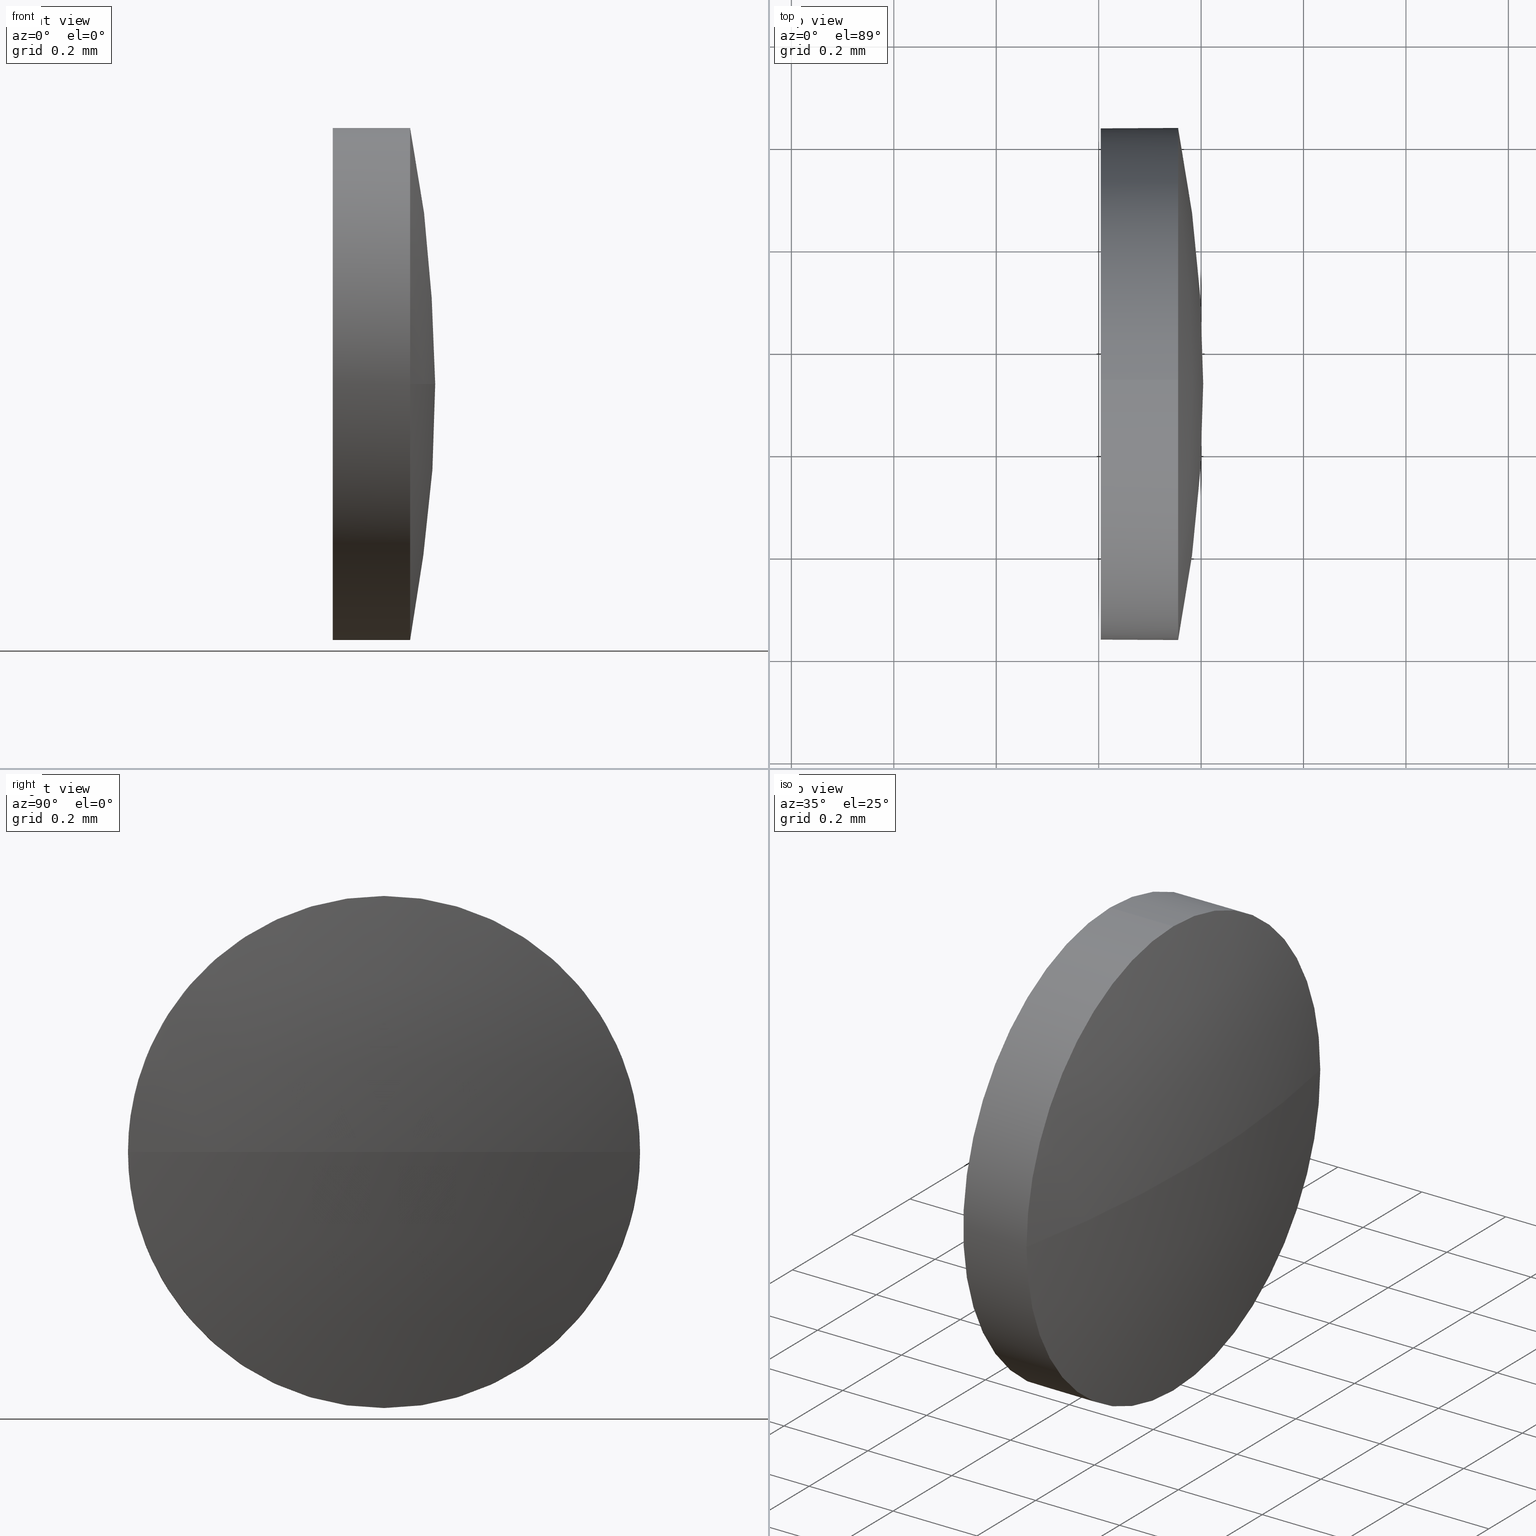
[diagram: canonical four-view strip — front | top / right | iso, engineering-drawing reading convention]
A machine part, canonical four-view strip (front | top / right | iso — engineering-drawing reading convention). The complete STEP part file that produces these views, byte-faithful:
ISO-10303-21;
HEADER;
FILE_DESCRIPTION (( 'STEP AP214' ),
    '1' );
FILE_NAME ('100106.STEP',
    '2019-05-13T08:53:25',
    ( '' ),
    ( '' ),
    'SwSTEP 2.0',
    'SolidWorks 2016',
    '' );
FILE_SCHEMA (( 'AUTOMOTIVE_DESIGN' ));
ENDSEC;

DATA;
#1 = PRODUCT_DEFINITION_SHAPE ( 'NONE', 'NONE',  #185 ) ;
#2 = VERTEX_POINT ( 'NONE', #139 ) ;
#3 = EDGE_CURVE ( 'NONE', #87, #138, #28, .T. ) ;
#4 = CARTESIAN_POINT ( 'NONE',  ( 48.82861791711177800, 12.93295623006154700, 0.0000000000000000000 ) ) ;
#5 = VERTEX_POINT ( 'NONE', #165 ) ;
#6 = DIRECTION ( 'NONE',  ( 0.0000000000000000000, -1.000000000000000000, 0.0000000000000000000 ) ) ;
#7 = CARTESIAN_POINT ( 'NONE',  ( 51.20413832527503900, 12.93295623006154200, -0.5000000000000004400 ) ) ;
#8 = PRODUCT_DEFINITION_FORMATION_WITH_SPECIFIED_SOURCE ( '�κ�', '', #55, .NOT_KNOWN. ) ;
#9 = CARTESIAN_POINT ( 'NONE',  ( 51.10998327809760200, 12.93295623006154200, 0.0000000000000000000 ) ) ;
#10 = DIRECTION ( 'NONE',  ( 0.0000000000000000000, 0.0000000000000000000, 1.000000000000000000 ) ) ;
#11 = ADVANCED_FACE ( 'NONE', ( #104 ), #96, .F. ) ;
#12 = EDGE_CURVE ( 'NONE', #115, #138, #100, .T. ) ;
#13 = DIRECTION ( 'NONE',  ( -1.000000000000000000, -0.0000000000000000000, -0.0000000000000000000 ) ) ;
#14 = FACE_OUTER_BOUND ( 'NONE', #60, .T. ) ;
#15 = ORIENTED_EDGE ( 'NONE', *, *, #149, .T. ) ;
#16 = DIRECTION ( 'NONE',  ( 0.0000000000000000000, 0.0000000000000000000, 1.000000000000000000 ) ) ;
#17 = PRESENTATION_LAYER_ASSIGNMENT (  '', '', ( #173 ) ) ;
#18 = APPLICATION_CONTEXT ( 'automotive_design' ) ;
#19 = UNCERTAINTY_MEASURE_WITH_UNIT (LENGTH_MEASURE( 1.000000000000000100E-005 ), #73, 'distance_accuracy_value', 'NONE');
#20 = DIRECTION ( 'NONE',  ( 0.0000000000000000000, -1.000000000000000000, 0.0000000000000000000 ) ) ;
#21 = VERTEX_POINT ( 'NONE', #7 ) ;
#22 = CARTESIAN_POINT ( 'NONE',  ( 51.10998327809760200, 12.93295623006154200, 0.0000000000000000000 ) ) ;
#23 = DIRECTION ( 'NONE',  ( 0.0000000000000000000, 0.0000000000000000000, 1.000000000000000000 ) ) ;
#24 =( LENGTH_UNIT ( ) NAMED_UNIT ( * ) SI_UNIT ( .MILLI., .METRE. ) );
#25 = SURFACE_SIDE_STYLE ('',( #170 ) ) ;
#26 = EDGE_CURVE ( 'NONE', #115, #5, #65, .T. ) ;
#27 = DIRECTION ( 'NONE',  ( -1.000000000000000000, -0.0000000000000000000, -0.0000000000000000000 ) ) ;
#28 = CIRCLE ( 'NONE', #52, 0.5000000000000004400 ) ;
#29 = AXIS2_PLACEMENT_3D ( 'NONE', #167, #129, #144 ) ;
#30 = ADVANCED_FACE ( 'NONE', ( #171 ), #151, .T. ) ;
#31 = DIRECTION ( 'NONE',  ( -1.000000000000000000, -0.0000000000000000000, -0.0000000000000000000 ) ) ;
#32 = CARTESIAN_POINT ( 'NONE',  ( 48.82861791711177800, 12.93295623006154700, 0.0000000000000000000 ) ) ;
#33 = ORIENTED_EDGE ( 'NONE', *, *, #174, .F. ) ;
#34 = ORIENTED_EDGE ( 'NONE', *, *, #59, .T. ) ;
#35 =( NAMED_UNIT ( * ) SI_UNIT ( $, .STERADIAN. ) SOLID_ANGLE_UNIT ( ) );
#36 = ADVANCED_BREP_SHAPE_REPRESENTATION ( '100106', ( #116, #29 ), #140 ) ;
#37 = APPLICATION_PROTOCOL_DEFINITION ( 'draft international standard', 'automotive_design', 1998, #18 ) ;
#38 = FACE_OUTER_BOUND ( 'NONE', #176, .T. ) ;
#39 = EDGE_CURVE ( 'NONE', #2, #21, #58, .T. ) ;
#40 = EDGE_LOOP ( 'NONE', ( #156, #169 ) ) ;
#41 = ORIENTED_EDGE ( 'NONE', *, *, #3, .T. ) ;
#42 = PRODUCT_RELATED_PRODUCT_CATEGORY ( 'part', '', ( #55 ) ) ;
#43 = FACE_OUTER_BOUND ( 'NONE', #105, .T. ) ;
#44 = AXIS2_PLACEMENT_3D ( 'NONE', #153, #31, #97 ) ;
#45 = CARTESIAN_POINT ( 'NONE',  ( 51.35513832527504300, 12.93295623006154200, -0.5000000000000004400 ) ) ;
#46 = ORIENTED_EDGE ( 'NONE', *, *, #163, .T. ) ;
#47 = ORIENTED_EDGE ( 'NONE', *, *, #59, .F. ) ;
#48 = DIRECTION ( 'NONE',  ( 0.0000000000000000000, 0.0000000000000000000, -1.000000000000000000 ) ) ;
#49 = DIRECTION ( 'NONE',  ( -1.000000000000000000, -0.0000000000000000000, -0.0000000000000000000 ) ) ;
#50 = ORIENTED_EDGE ( 'NONE', *, *, #26, .F. ) ;
#51 = CIRCLE ( 'NONE', #121, 0.5000000000000004400 ) ;
#52 = AXIS2_PLACEMENT_3D ( 'NONE', #136, #137, #152 ) ;
#53 = VECTOR ( 'NONE', #61, 1000.000000000000000 ) ;
#54 = CARTESIAN_POINT ( 'NONE',  ( 51.40413832527504200, 12.93295623006154700, 0.0000000000000000000 ) ) ;
#55 = PRODUCT ( '100106', '100106', '', ( #157 ) ) ;
#56 = UNCERTAINTY_MEASURE_WITH_UNIT (LENGTH_MEASURE( 1.000000000000000100E-005 ), #24, 'distance_accuracy_value', 'NONE');
#57 = STYLED_ITEM ( 'NONE', ( #143 ), #116 ) ;
#58 = CIRCLE ( 'NONE', #91, 0.5000000000000004400 ) ;
#59 = EDGE_CURVE ( 'NONE', #138, #131, #126, .T. ) ;
#60 = EDGE_LOOP ( 'NONE', ( #68, #72, #146, #47 ) ) ;
#61 = DIRECTION ( 'NONE',  ( -1.000000000000000000, -0.0000000000000000000, -0.0000000000000000000 ) ) ;
#62 =( NAMED_UNIT ( * ) PLANE_ANGLE_UNIT ( ) SI_UNIT ( $, .RADIAN. ) );
#63 = PRESENTATION_LAYER_ASSIGNMENT (  '', '', ( #57 ) ) ;
#64 = ORIENTED_EDGE ( 'NONE', *, *, #163, .F. ) ;
#65 = CIRCLE ( 'NONE', #84, 2.575520408163265000 ) ;
#66 = DIRECTION ( 'NONE',  ( -1.000000000000000000, -0.0000000000000000000, -0.0000000000000000000 ) ) ;
#67 = DIRECTION ( 'NONE',  ( 0.0000000000000000000, 0.0000000000000000000, 1.000000000000000000 ) ) ;
#68 = ORIENTED_EDGE ( 'NONE', *, *, #12, .F. ) ;
#69 = FILL_AREA_STYLE_COLOUR ( '', #132 ) ;
#70 = DIRECTION ( 'NONE',  ( 0.0000000000000000000, 0.0000000000000000000, 1.000000000000000000 ) ) ;
#71 = ORIENTED_EDGE ( 'NONE', *, *, #12, .T. ) ;
#72 = ORIENTED_EDGE ( 'NONE', *, *, #26, .T. ) ;
#73 =( LENGTH_UNIT ( ) NAMED_UNIT ( * ) SI_UNIT ( .MILLI., .METRE. ) );
#74 =( NAMED_UNIT ( * ) PLANE_ANGLE_UNIT ( ) SI_UNIT ( $, .RADIAN. ) );
#75 = APPLICATION_CONTEXT ( 'automotive_design' ) ;
#76 = AXIS2_PLACEMENT_3D ( 'NONE', #125, #112, #93 ) ;
#77 = PRODUCT_DEFINITION_CONTEXT ( 'detailed design', #75, 'design' ) ;
#78 = ORIENTED_EDGE ( 'NONE', *, *, #3, .F. ) ;
#79 = AXIS2_PLACEMENT_3D ( 'NONE', #164, #81, #150 ) ;
#80 = DIRECTION ( 'NONE',  ( -1.000000000000000000, -0.0000000000000000000, -0.0000000000000000000 ) ) ;
#81 = DIRECTION ( 'NONE',  ( 1.000000000000000000, 0.0000000000000000000, 0.0000000000000000000 ) ) ;
#82 = SURFACE_STYLE_USAGE ( .BOTH. , #25 ) ;
#83 = DIRECTION ( 'NONE',  ( -1.000000000000000000, -0.0000000000000000000, -0.0000000000000000000 ) ) ;
#84 = AXIS2_PLACEMENT_3D ( 'NONE', #177, #48, #114 ) ;
#85 = CARTESIAN_POINT ( 'NONE',  ( 51.35513832527504300, 12.93295623006154200, 0.0000000000000000000 ) ) ;
#86 = LINE ( 'NONE', #154, #53 ) ;
#87 = VERTEX_POINT ( 'NONE', #181 ) ;
#88 =( NAMED_UNIT ( * ) SI_UNIT ( $, .STERADIAN. ) SOLID_ANGLE_UNIT ( ) );
#89 = PRESENTATION_STYLE_ASSIGNMENT (( #119 ) ) ;
#90 = ORIENTED_EDGE ( 'NONE', *, *, #145, .F. ) ;
#91 = AXIS2_PLACEMENT_3D ( 'NONE', #98, #13, #16 ) ;
#92 = CARTESIAN_POINT ( 'NONE',  ( 51.10998327809760200, 12.93295623006154200, -0.5000000000000004400 ) ) ;
#93 = DIRECTION ( 'NONE',  ( 0.0000000000000000000, -1.000000000000000000, -1.224646799147353500E-016 ) ) ;
#94 =( NAMED_UNIT ( * ) PLANE_ANGLE_UNIT ( ) SI_UNIT ( $, .RADIAN. ) );
#95 = DIRECTION ( 'NONE',  ( 0.0000000000000000000, 0.0000000000000000000, 1.000000000000000000 ) ) ;
#96 = PLANE ( 'NONE',  #79 ) ;
#97 = DIRECTION ( 'NONE',  ( 0.0000000000000000000, 0.0000000000000000000, 1.000000000000000000 ) ) ;
#98 = CARTESIAN_POINT ( 'NONE',  ( 51.20413832527503900, 12.93295623006154200, 0.0000000000000000000 ) ) ;
#99 = ADVANCED_FACE ( 'NONE', ( #38 ), #134, .T. ) ;
#100 = CIRCLE ( 'NONE', #76, 2.575520408163263200 ) ;
#101 = MECHANICAL_DESIGN_GEOMETRIC_PRESENTATION_REPRESENTATION (  '', ( #57 ), #113 ) ;
#102 =( LENGTH_UNIT ( ) NAMED_UNIT ( * ) SI_UNIT ( .MILLI., .METRE. ) );
#103 = FILL_AREA_STYLE ('',( #69 ) ) ;
#104 = FACE_OUTER_BOUND ( 'NONE', #40, .T. ) ;
#105 = EDGE_LOOP ( 'NONE', ( #172, #15, #109, #46, #90 ) ) ;
#106 = SURFACE_SIDE_STYLE ('',( #147 ) ) ;
#107 = AXIS2_PLACEMENT_3D ( 'NONE', #85, #180, #70 ) ;
#108 = AXIS2_PLACEMENT_3D ( 'NONE', #118, #49, #142 ) ;
#109 = ORIENTED_EDGE ( 'NONE', *, *, #174, .T. ) ;
#110 = FILL_AREA_STYLE ('',( #161 ) ) ;
#111 = AXIS2_PLACEMENT_3D ( 'NONE', #9, #83, #128 ) ;
#112 = DIRECTION ( 'NONE',  ( 0.0000000000000000000, -1.224646799147353200E-016, 1.000000000000000000 ) ) ;
#113 =( GEOMETRIC_REPRESENTATION_CONTEXT ( 3 ) GLOBAL_UNCERTAINTY_ASSIGNED_CONTEXT ( ( #56 ) ) GLOBAL_UNIT_ASSIGNED_CONTEXT ( ( #24, #94, #124 ) ) REPRESENTATION_CONTEXT ( 'NONE', 'WORKASPACE' ) );
#114 = DIRECTION ( 'NONE',  ( -1.000000000000000000, 0.0000000000000000000, 0.0000000000000000000 ) ) ;
#115 = VERTEX_POINT ( 'NONE', #54 ) ;
#116 = MANIFOLD_SOLID_BREP ( '��ת1', #183 ) ;
#117 = AXIS2_PLACEMENT_3D ( 'NONE', #22, #80, #23 ) ;
#118 = CARTESIAN_POINT ( 'NONE',  ( 51.35513832527504300, 12.93295623006154200, 0.0000000000000000000 ) ) ;
#119 = SURFACE_STYLE_USAGE ( .BOTH. , #106 ) ;
#120 =( GEOMETRIC_REPRESENTATION_CONTEXT ( 3 ) GLOBAL_UNCERTAINTY_ASSIGNED_CONTEXT ( ( #175 ) ) GLOBAL_UNIT_ASSIGNED_CONTEXT ( ( #102, #62, #35 ) ) REPRESENTATION_CONTEXT ( 'NONE', 'WORKASPACE' ) );
#121 = AXIS2_PLACEMENT_3D ( 'NONE', #141, #27, #95 ) ;
#122 = SHAPE_DEFINITION_REPRESENTATION ( #1, #36 ) ;
#123 = AXIS2_PLACEMENT_3D ( 'NONE', #32, #10, #20 ) ;
#124 =( NAMED_UNIT ( * ) SI_UNIT ( $, .STERADIAN. ) SOLID_ANGLE_UNIT ( ) );
#125 = CARTESIAN_POINT ( 'NONE',  ( 48.82861791711177800, 12.93295623006154700, 0.0000000000000000000 ) ) ;
#126 = CIRCLE ( 'NONE', #108, 0.5000000000000004400 ) ;
#127 = ADVANCED_FACE ( 'NONE', ( #14 ), #179, .T. ) ;
#128 = DIRECTION ( 'NONE',  ( 0.0000000000000000000, 0.0000000000000000000, 1.000000000000000000 ) ) ;
#129 = DIRECTION ( 'NONE',  ( 0.0000000000000000000, 0.0000000000000000000, 1.000000000000000000 ) ) ;
#130 = AXIS2_PLACEMENT_3D ( 'NONE', #4, #67, #6 ) ;
#131 = VERTEX_POINT ( 'NONE', #45 ) ;
#132 = COLOUR_RGB ( '',1.000000000000000000, 1.000000000000000000, 1.000000000000000000 ) ;
#133 = EDGE_CURVE ( 'NONE', #131, #21, #168, .T. ) ;
#134 = SPHERICAL_SURFACE ( 'NONE', #123, 2.575520408163264100 ) ;
#135 = CARTESIAN_POINT ( 'NONE',  ( 51.35513832527504300, 13.43295623006154200, 6.123233995736726600E-017 ) ) ;
#136 = CARTESIAN_POINT ( 'NONE',  ( 51.35513832527504300, 12.93295623006154200, 0.0000000000000000000 ) ) ;
#137 = DIRECTION ( 'NONE',  ( -1.000000000000000000, -0.0000000000000000000, -0.0000000000000000000 ) ) ;
#138 = VERTEX_POINT ( 'NONE', #135 ) ;
#139 = CARTESIAN_POINT ( 'NONE',  ( 51.20413832527503900, 12.93295623006154200, 0.5000000000000004400 ) ) ;
#140 =( GEOMETRIC_REPRESENTATION_CONTEXT ( 3 ) GLOBAL_UNCERTAINTY_ASSIGNED_CONTEXT ( ( #19 ) ) GLOBAL_UNIT_ASSIGNED_CONTEXT ( ( #73, #74, #88 ) ) REPRESENTATION_CONTEXT ( 'NONE', 'WORKASPACE' ) );
#141 = CARTESIAN_POINT ( 'NONE',  ( 51.20413832527503900, 12.93295623006154200, 0.0000000000000000000 ) ) ;
#142 = DIRECTION ( 'NONE',  ( 0.0000000000000000000, 0.0000000000000000000, 1.000000000000000000 ) ) ;
#143 = PRESENTATION_STYLE_ASSIGNMENT (( #82 ) ) ;
#144 = DIRECTION ( 'NONE',  ( 1.000000000000000000, 0.0000000000000000000, 0.0000000000000000000 ) ) ;
#145 = EDGE_CURVE ( 'NONE', #21, #2, #51, .T. ) ;
#146 = ORIENTED_EDGE ( 'NONE', *, *, #149, .F. ) ;
#147 = SURFACE_STYLE_FILL_AREA ( #103 ) ;
#148 = CIRCLE ( 'NONE', #44, 0.5000000000000004400 ) ;
#149 = EDGE_CURVE ( 'NONE', #131, #5, #148, .T. ) ;
#150 = DIRECTION ( 'NONE',  ( 0.0000000000000000000, 0.0000000000000000000, -1.000000000000000000 ) ) ;
#151 = CYLINDRICAL_SURFACE ( 'NONE', #117, 0.5000000000000004400 ) ;
#152 = DIRECTION ( 'NONE',  ( 0.0000000000000000000, 0.0000000000000000000, 1.000000000000000000 ) ) ;
#153 = CARTESIAN_POINT ( 'NONE',  ( 51.35513832527504300, 12.93295623006154200, 0.0000000000000000000 ) ) ;
#154 = CARTESIAN_POINT ( 'NONE',  ( 51.10998327809760200, 12.93295623006154200, 0.5000000000000004400 ) ) ;
#155 = COLOUR_RGB ( '',1.000000000000000000, 1.000000000000000000, 1.000000000000000000 ) ;
#156 = ORIENTED_EDGE ( 'NONE', *, *, #39, .T. ) ;
#157 = PRODUCT_CONTEXT ( 'NONE', #18, 'mechanical' ) ;
#158 = VECTOR ( 'NONE', #66, 1000.000000000000000 ) ;
#159 = ORIENTED_EDGE ( 'NONE', *, *, #133, .T. ) ;
#160 = MECHANICAL_DESIGN_GEOMETRIC_PRESENTATION_REPRESENTATION (  '', ( #173 ), #120 ) ;
#161 = FILL_AREA_STYLE_COLOUR ( '', #155 ) ;
#162 = CIRCLE ( 'NONE', #107, 0.5000000000000004400 ) ;
#163 = EDGE_CURVE ( 'NONE', #87, #2, #86, .T. ) ;
#164 = CARTESIAN_POINT ( 'NONE',  ( 51.20413832527503900, 12.93295623006154200, 0.0000000000000000000 ) ) ;
#165 = CARTESIAN_POINT ( 'NONE',  ( 51.35513832527504300, 12.43295623006154400, 0.0000000000000000000 ) ) ;
#166 = ADVANCED_FACE ( 'NONE', ( #43 ), #186, .T. ) ;
#167 = CARTESIAN_POINT ( 'NONE',  ( 0.0000000000000000000, 0.0000000000000000000, 0.0000000000000000000 ) ) ;
#168 = LINE ( 'NONE', #92, #158 ) ;
#169 = ORIENTED_EDGE ( 'NONE', *, *, #145, .T. ) ;
#170 = SURFACE_STYLE_FILL_AREA ( #110 ) ;
#171 = FACE_OUTER_BOUND ( 'NONE', #182, .T. ) ;
#172 = ORIENTED_EDGE ( 'NONE', *, *, #133, .F. ) ;
#173 = STYLED_ITEM ( 'NONE', ( #89 ), #36 ) ;
#174 = EDGE_CURVE ( 'NONE', #5, #87, #162, .T. ) ;
#175 = UNCERTAINTY_MEASURE_WITH_UNIT (LENGTH_MEASURE( 1.000000000000000100E-005 ), #102, 'distance_accuracy_value', 'NONE');
#176 = EDGE_LOOP ( 'NONE', ( #50, #71, #78, #33 ) ) ;
#177 = CARTESIAN_POINT ( 'NONE',  ( 48.82861791711177800, 12.93295623006154700, 0.0000000000000000000 ) ) ;
#178 = ORIENTED_EDGE ( 'NONE', *, *, #39, .F. ) ;
#179 = SPHERICAL_SURFACE ( 'NONE', #130, 2.575520408163264100 ) ;
#180 = DIRECTION ( 'NONE',  ( -1.000000000000000000, -0.0000000000000000000, -0.0000000000000000000 ) ) ;
#181 = CARTESIAN_POINT ( 'NONE',  ( 51.35513832527504300, 12.93295623006154200, 0.5000000000000004400 ) ) ;
#182 = EDGE_LOOP ( 'NONE', ( #34, #159, #178, #64, #41 ) ) ;
#183 = CLOSED_SHELL ( 'NONE', ( #30, #99, #127, #166, #11 ) ) ;
#184 = APPLICATION_PROTOCOL_DEFINITION ( 'draft international standard', 'automotive_design', 1998, #75 ) ;
#185 = PRODUCT_DEFINITION ( 'δ֪', '', #8, #77 ) ;
#186 = CYLINDRICAL_SURFACE ( 'NONE', #111, 0.5000000000000004400 ) ;
ENDSEC;
END-ISO-10303-21;
